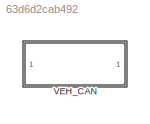
MODEL slx_63d6d2cab492
KIND library
CONFIG AbsTol = auto
CONFIG EnableMultiTasking = off
CONFIG FixedStep = auto
CONFIG MaxStep = auto
CONFIG MinStep = auto
CONFIG RelTol = 1e-3
CONFIG SampleTimeConstraint = Unconstrained
CONFIG Solver = VariableStepAuto
CONFIG SolverName = VariableStepAuto
CONFIG StartTime = 0.0
CONFIG StopTime = 10.0
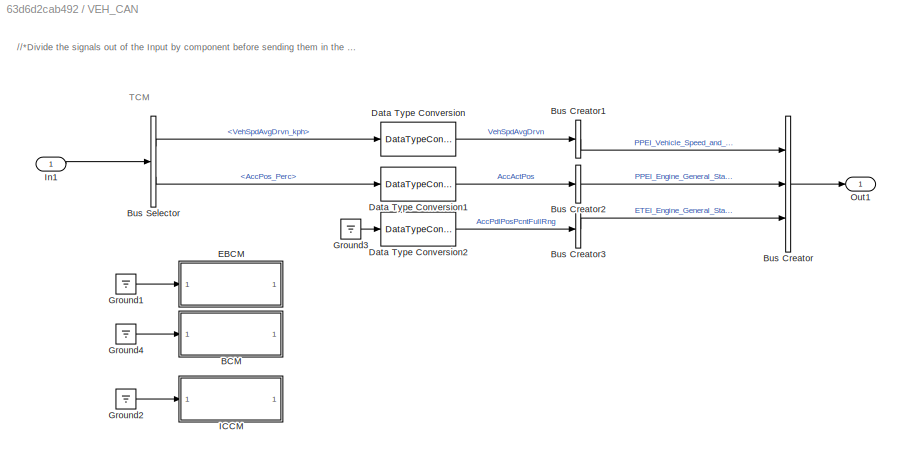
BLOCK [SubSystem] VEH_CAN
  Ports = [1, 1]
  RequestExecContextInheritance = off
  Variant = off
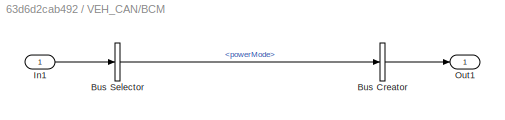
BLOCK [SubSystem] VEH_CAN/BCM
  Commented = on
  Ports = [1, 1]
  RequestExecContextInheritance = off
  Variant = off
BLOCK [BusCreator] VEH_CAN/BCM/Bus Creator
  DisplayOption = bar
  InheritFromInputs = on
  Inputs = 1
  Ports = [1, 1]
BLOCK [BusSelector] VEH_CAN/BCM/Bus Selector
  OutputAsBus = off
  OutputSignals = Controls.powerMode
  Ports = [1, 1]
BLOCK [Inport] VEH_CAN/BCM/In1
  IconDisplay = Port number
BLOCK [Outport] VEH_CAN/BCM/Out1
  IconDisplay = Port number
BLOCK [BusCreator] VEH_CAN/Bus Creator
  DisplayOption = bar
  InheritFromInputs = on
  Inputs = 3
  Ports = [3, 1]
BLOCK [BusCreator] VEH_CAN/Bus Creator1
  DisplayOption = bar
  InheritFromInputs = on
  Inputs = 1
  Ports = [1, 1]
BLOCK [BusCreator] VEH_CAN/Bus Creator2
  DisplayOption = bar
  InheritFromInputs = on
  Inputs = 1
  Ports = [1, 1]
BLOCK [BusCreator] VEH_CAN/Bus Creator3
  DisplayOption = bar
  InheritFromInputs = on
  Inputs = 1
  Ports = [1, 1]
BLOCK [BusSelector] VEH_CAN/Bus Selector
  OutputAsBus = off
  OutputSignals = Controls.VehSpdAvgDrvn_kph,Controls.AccPos_Perc
  Ports = [1, 2]
BLOCK [DataTypeConversion] VEH_CAN/Data Type Conversion
  RndMeth = Floor
  SaturateOnIntegerOverflow = off
BLOCK [DataTypeConversion] VEH_CAN/Data Type Conversion1
  RndMeth = Floor
  SaturateOnIntegerOverflow = off
BLOCK [DataTypeConversion] VEH_CAN/Data Type Conversion2
  RndMeth = Floor
  SaturateOnIntegerOverflow = off
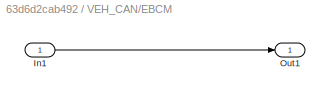
BLOCK [SubSystem] VEH_CAN/EBCM
  Commented = on
  Ports = [1, 1]
  RequestExecContextInheritance = off
  Variant = off
BLOCK [Inport] VEH_CAN/EBCM/In1
  IconDisplay = Port number
BLOCK [Outport] VEH_CAN/EBCM/Out1
  IconDisplay = Port number
BLOCK [Ground] VEH_CAN/Ground1
  Commented = on
BLOCK [Ground] VEH_CAN/Ground2
  Commented = on
BLOCK [Ground] VEH_CAN/Ground3
BLOCK [Ground] VEH_CAN/Ground4
  Commented = on
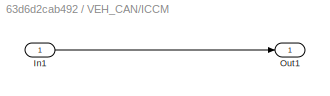
BLOCK [SubSystem] VEH_CAN/ICCM
  Commented = on
  Ports = [1, 1]
  RequestExecContextInheritance = off
  Variant = off
BLOCK [Inport] VEH_CAN/ICCM/In1
  IconDisplay = Port number
BLOCK [Outport] VEH_CAN/ICCM/Out1
  IconDisplay = Port number
BLOCK [Inport] VEH_CAN/In1
  IconDisplay = Port number
BLOCK [Outport] VEH_CAN/Out1
  IconDisplay = Port number
ANNOTATION VEH_CAN: //*Divide the signals out of the Input by component before sending them in the TCM, EBCM etc blocks*//
ANNOTATION VEH_CAN: TCM
LINE VEH_CAN/BCM/Bus Creator:1 -> VEH_CAN/BCM/Out1:1
LINE VEH_CAN/BCM/Bus Selector:1 -> VEH_CAN/BCM/Bus Creator:1
LINE VEH_CAN/BCM/In1:1 -> VEH_CAN/BCM/Bus Selector:1
LINE VEH_CAN/Bus Creator1:1 -> VEH_CAN/Bus Creator:1
LINE VEH_CAN/Bus Creator2:1 -> VEH_CAN/Bus Creator:2
LINE VEH_CAN/Bus Creator3:1 -> VEH_CAN/Bus Creator:3
LINE VEH_CAN/Bus Creator:1 -> VEH_CAN/Out1:1
LINE VEH_CAN/Bus Selector:1 -> VEH_CAN/Data Type Conversion:1
LINE VEH_CAN/Bus Selector:2 -> VEH_CAN/Data Type Conversion1:1
LINE VEH_CAN/Data Type Conversion1:1 -> VEH_CAN/Bus Creator2:1
LINE VEH_CAN/Data Type Conversion2:1 -> VEH_CAN/Bus Creator3:1
LINE VEH_CAN/Data Type Conversion:1 -> VEH_CAN/Bus Creator1:1
LINE VEH_CAN/EBCM/In1:1 -> VEH_CAN/EBCM/Out1:1
LINE VEH_CAN/Ground1:1 -> VEH_CAN/EBCM:1
LINE VEH_CAN/Ground2:1 -> VEH_CAN/ICCM:1
LINE VEH_CAN/Ground3:1 -> VEH_CAN/Data Type Conversion2:1
LINE VEH_CAN/Ground4:1 -> VEH_CAN/BCM:1
LINE VEH_CAN/ICCM/In1:1 -> VEH_CAN/ICCM/Out1:1
LINE VEH_CAN/In1:1 -> VEH_CAN/Bus Selector:1
